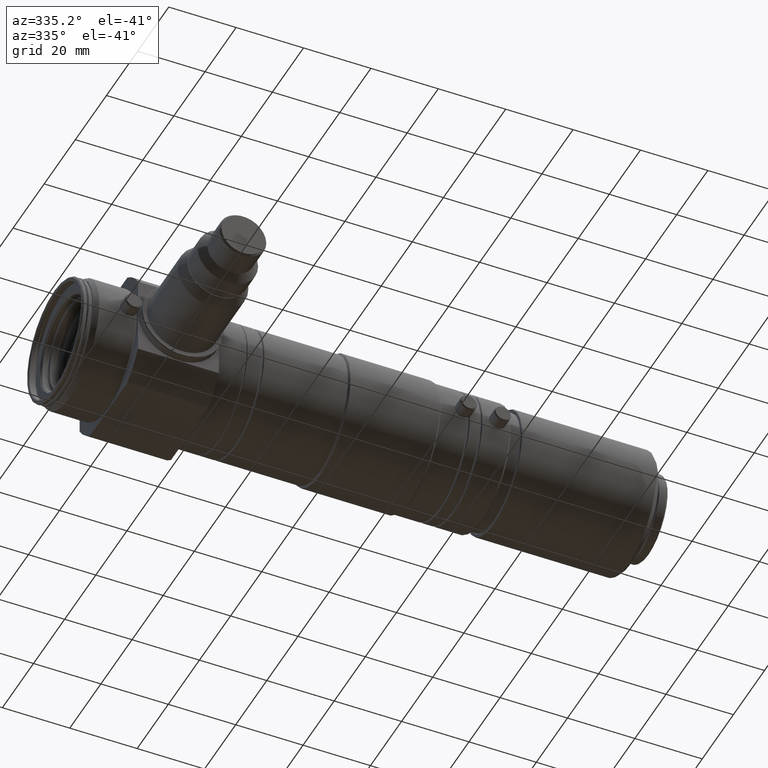
[diagram: clean part render]
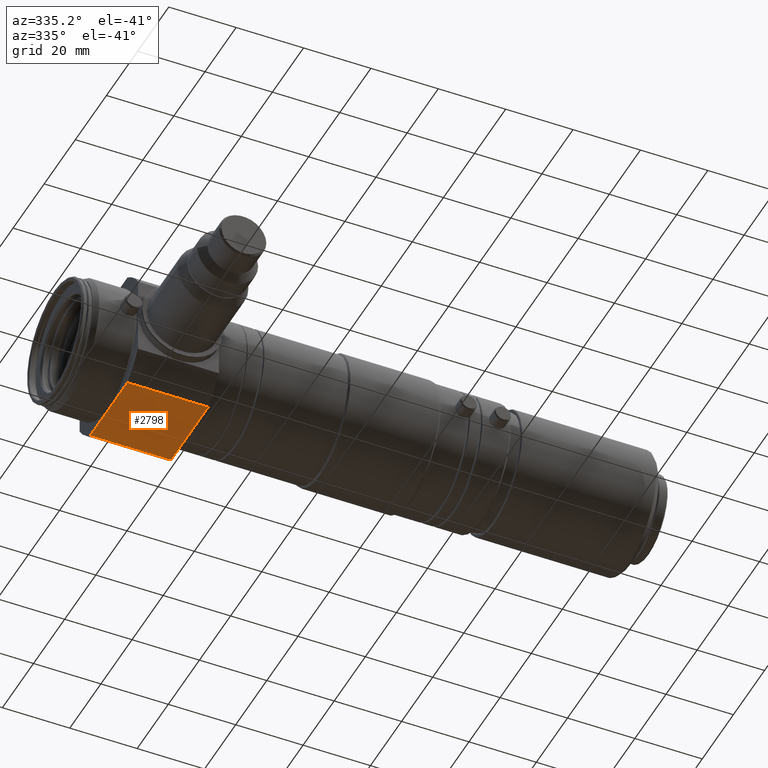
[diagram: same view with one face highlighted and labeled with its STEP entity id]
A machine part, auxiliary view. The second image highlights one B-rep face of the part: STEP entity #2798.
In plain terms, the highlighted planar face has unit normal (0, 0, -1).
Its self-contained STEP definition (entity closure, byte-faithful):
#153 = EDGE_LOOP ( 'NONE', ( #5116, #6751, #195, #6961, #3963 ) ) ;
#195 = ORIENTED_EDGE ( 'NONE', *, *, #7793, .T. ) ;
#251 = DIRECTION ( 'NONE',  ( 0.0000000000000000000, 9.251858538542970300E-017, -1.000000000000000000 ) ) ;
#263 = CARTESIAN_POINT ( 'NONE',  ( 16.13144875422021200, -3.993049516889122200, -18.75000000000000000 ) ) ;
#421 = CARTESIAN_POINT ( 'NONE',  ( 16.13097463334723300, -11.97914855071119400, -18.75000000000000000 ) ) ;
#477 = CARTESIAN_POINT ( 'NONE',  ( 16.13146899108674500, 1.148106374200643800E-015, -18.75000000000000400 ) ) ;
#553 = VECTOR ( 'NONE', #5456, 1000.000000000000000 ) ;
#691 = DIRECTION ( 'NONE',  ( -0.0000000000000000000, 1.000000000000000000, 9.251858538542971600E-017 ) ) ;
#1386 = CARTESIAN_POINT ( 'NONE',  ( 8.060974633347258900, 11.97914855071119800, -18.75000000000000000 ) ) ;
#1395 = CARTESIAN_POINT ( 'NONE',  ( 40.13097463334723600, -11.97914855071119400, -18.75000000000000400 ) ) ;
#1417 = VERTEX_POINT ( 'NONE', #477 ) ;
#1459 = CARTESIAN_POINT ( 'NONE',  ( 16.13097463334723600, 18.75000000000000000, -18.75000000000000000 ) ) ;
#1819 = VECTOR ( 'NONE', #691, 1000.000000000000000 ) ;
#1926 = AXIS2_PLACEMENT_3D ( 'NONE', #1459, #251, #4614 ) ;
#2778 = CARTESIAN_POINT ( 'NONE',  ( 16.13144875422021200, 3.993049516889124500, -18.75000000000000000 ) ) ;
#2798 = ADVANCED_FACE ( 'NONE', ( #7745 ), #7730, .T. ) ;
#2975 = CARTESIAN_POINT ( 'NONE',  ( 40.13097463334723600, 11.97914855071119800, -18.75000000000000000 ) ) ;
#3123 = VERTEX_POINT ( 'NONE', #1395 ) ;
#3224 = EDGE_CURVE ( 'NONE', #4234, #1417, #5382, .T. ) ;
#3407 = CARTESIAN_POINT ( 'NONE',  ( 16.13097463334723600, 11.97914855066737000, -18.75000000000000000 ) ) ;
#3467 = VERTEX_POINT ( 'NONE', #5598 ) ;
#3665 = B_SPLINE_CURVE_WITH_KNOTS ( 'NONE', 3,
 ( #6513, #2778, #7158, #3407 ),
 .UNSPECIFIED., .F., .F.,
 ( 4, 4 ),
 ( 0.4999999999999998300, 1.000000000000000000 ),
 .UNSPECIFIED. ) ;
#3866 = LINE ( 'NONE', #7337, #553 ) ;
#3963 = ORIENTED_EDGE ( 'NONE', *, *, #7627, .F. ) ;
#4056 = VERTEX_POINT ( 'NONE', #2975 ) ;
#4234 = VERTEX_POINT ( 'NONE', #421 ) ;
#4285 = VECTOR ( 'NONE', #7619, 1000.000000000000000 ) ;
#4431 = CARTESIAN_POINT ( 'NONE',  ( 40.13097463334723600, 18.75000000000000000, -18.75000000000000000 ) ) ;
#4482 = LINE ( 'NONE', #1386, #4285 ) ;
#4614 = DIRECTION ( 'NONE',  ( 0.0000000000000000000, 1.000000000000000000, 9.251858538542970300E-017 ) ) ;
#4627 = CARTESIAN_POINT ( 'NONE',  ( 16.13146899108674500, 1.148106374200643800E-015, -18.75000000000000400 ) ) ;
#4888 = EDGE_CURVE ( 'NONE', #3467, #4056, #4482, .T. ) ;
#5116 = ORIENTED_EDGE ( 'NONE', *, *, #7968, .T. ) ;
#5231 = CARTESIAN_POINT ( 'NONE',  ( 16.13097463334723300, -11.97914855071119400, -18.75000000000000000 ) ) ;
#5382 = B_SPLINE_CURVE_WITH_KNOTS ( 'NONE', 3,
 ( #5231, #6466, #263, #4627 ),
 .UNSPECIFIED., .F., .F.,
 ( 4, 4 ),
 ( 0.0000000000000000000, 0.4999999999999998300 ),
 .UNSPECIFIED. ) ;
#5456 = DIRECTION ( 'NONE',  ( -1.000000000000000000, -0.0000000000000000000, -0.0000000000000000000 ) ) ;
#5598 = CARTESIAN_POINT ( 'NONE',  ( 16.13097463334723600, 11.97914855066737000, -18.75000000000000000 ) ) ;
#6466 = CARTESIAN_POINT ( 'NONE',  ( 16.13129071392922100, -7.986099033778240900, -18.75000000000000400 ) ) ;
#6513 = CARTESIAN_POINT ( 'NONE',  ( 16.13146899108674500, 1.148106374200643800E-015, -18.75000000000000400 ) ) ;
#6609 = LINE ( 'NONE', #4431, #1819 ) ;
#6751 = ORIENTED_EDGE ( 'NONE', *, *, #3224, .T. ) ;
#6961 = ORIENTED_EDGE ( 'NONE', *, *, #4888, .T. ) ;
#7158 = CARTESIAN_POINT ( 'NONE',  ( 16.13129071392922100, 7.986099033778247100, -18.75000000000000000 ) ) ;
#7337 = CARTESIAN_POINT ( 'NONE',  ( 8.060974633347258900, -11.97914855071119400, -18.75000000000000000 ) ) ;
#7619 = DIRECTION ( 'NONE',  ( 1.000000000000000000, 0.0000000000000000000, 0.0000000000000000000 ) ) ;
#7627 = EDGE_CURVE ( 'NONE', #3123, #4056, #6609, .T. ) ;
#7730 = PLANE ( 'NONE',  #1926 ) ;
#7745 = FACE_OUTER_BOUND ( 'NONE', #153, .T. ) ;
#7793 = EDGE_CURVE ( 'NONE', #1417, #3467, #3665, .T. ) ;
#7968 = EDGE_CURVE ( 'NONE', #3123, #4234, #3866, .T. ) ;